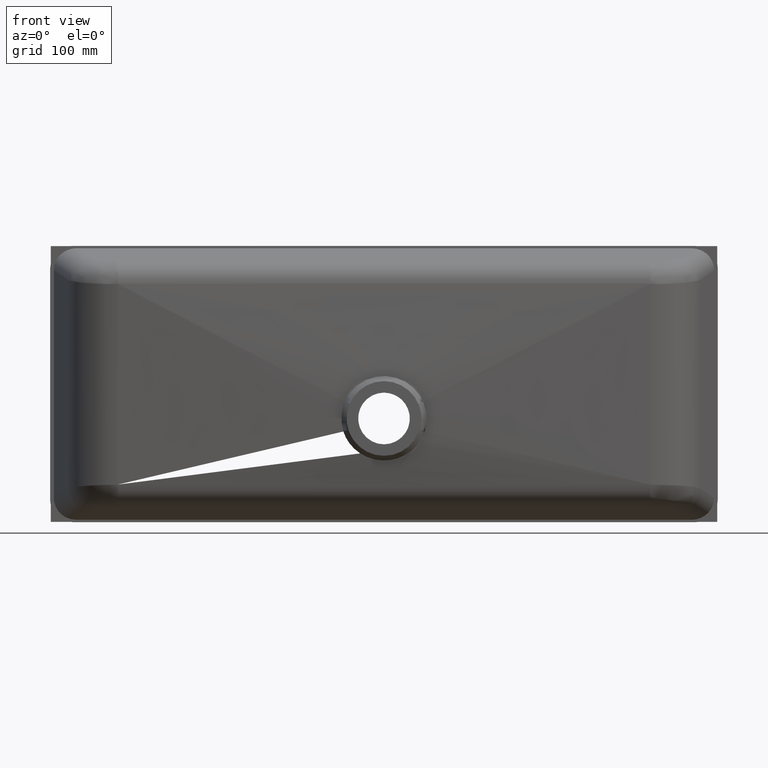
[diagram: clean part render]
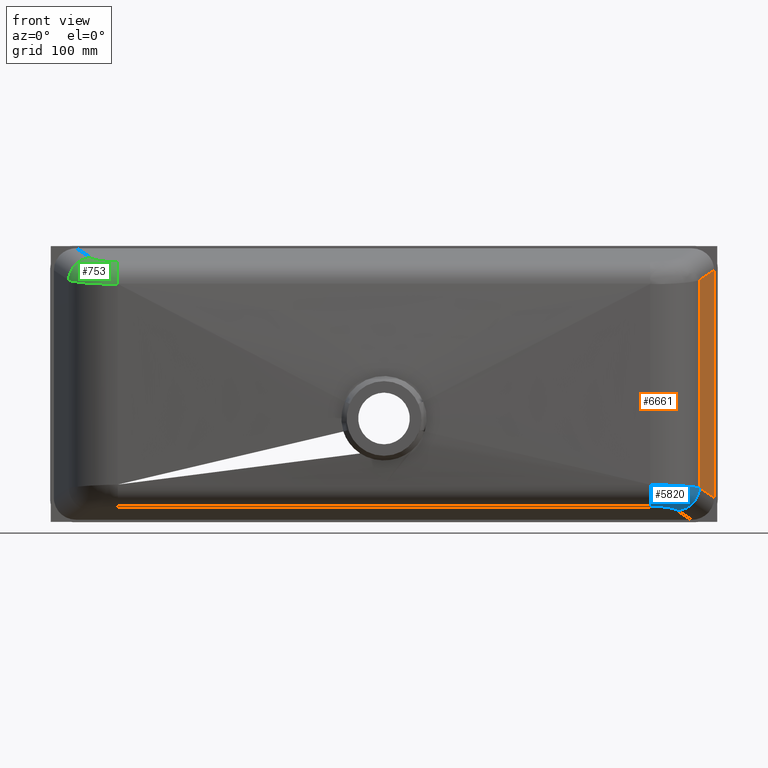
[diagram: same view with three faces highlighted in distinct colors, each labeled with its STEP entity id]
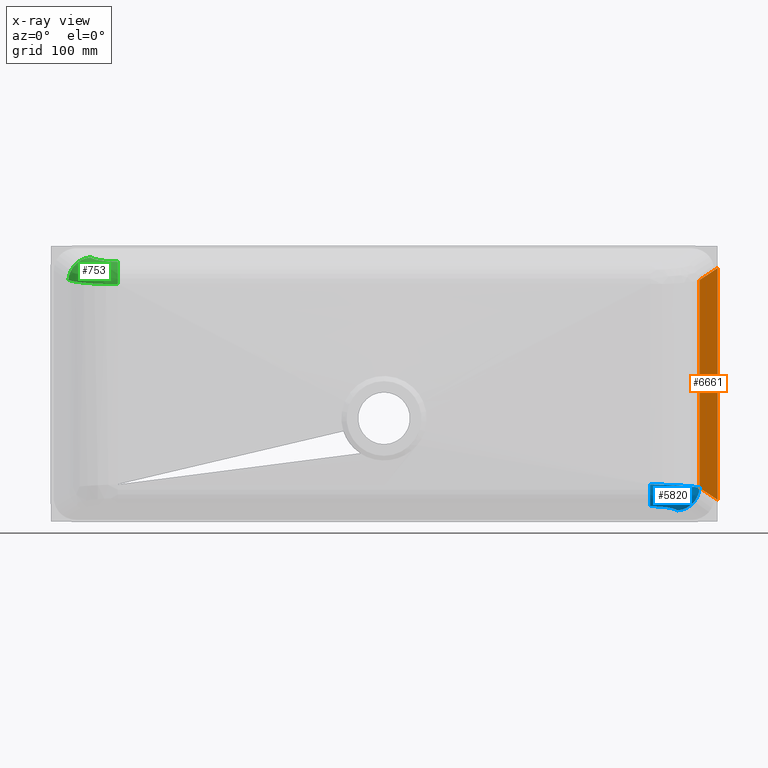
[diagram: x-ray of the same camera — body ghosted, the three highlighted faces saturated]
A machine part, front view with three faces highlighted in distinct colors.
The next image is the same camera in x-ray (body ghosted, the three faces saturated) — at least one of them is partly hidden behind the body in this view.
Their STEP definitions:

[orange] entity #6661 — the highlighted planar face has unit normal (0.9556, -0.2945, 0).
#226 = AXIS2_PLACEMENT_3D ( 'NONE', #4502, #4828, #1514 ) ;
#279 = VERTEX_POINT ( 'NONE', #6940 ) ;
#547 = LINE ( 'NONE', #4773, #5669 ) ;
#575 = LINE ( 'NONE', #4490, #5588 ) ;
#967 = CARTESIAN_POINT ( 'NONE',  ( 274.6665820904081000, -51.25455947590499800, 90.46977674445636800 ) ) ;
#1226 = ORIENTED_EDGE ( 'NONE', *, *, #6450, .T. ) ;
#1272 = VECTOR ( 'NONE', #5541, 1000.000000000000000 ) ;
#1426 = PLANE ( 'NONE',  #226 ) ;
#1435 = VECTOR ( 'NONE', #2630, 999.9999999999998900 ) ;
#1514 = DIRECTION ( 'NONE',  ( 0.0000000000000000000, 0.0000000000000000000, 1.000000000000000000 ) ) ;
#1575 = CARTESIAN_POINT ( 'NONE',  ( 274.6665820904081600, -51.25455947590502600, -90.46977674445646800 ) ) ;
#2421 = EDGE_CURVE ( 'NONE', #4818, #6031, #547, .T. ) ;
#2475 = LINE ( 'NONE', #6665, #1435 ) ;
#2630 = DIRECTION ( 'NONE',  ( -0.2890262232899768500, -0.9377295244519263700, -0.1926841488599843300 ) ) ;
#2754 = ORIENTED_EDGE ( 'NONE', *, *, #6822, .F. ) ;
#3111 = EDGE_CURVE ( 'NONE', #279, #4818, #2475, .T. ) ;
#3824 = CARTESIAN_POINT ( 'NONE',  ( 290.4642202850363900, 0.0000000000000000000, -110.0000000000000300 ) ) ;
#3908 = DIRECTION ( 'NONE',  ( 0.2890262232899767400, 0.9377295244519260300, -0.1926841488599853600 ) ) ;
#4293 = LINE ( 'NONE', #3824, #1272 ) ;
#4490 = CARTESIAN_POINT ( 'NONE',  ( 243.3109626200316900, -152.9861248686818600, -69.56603043087213200 ) ) ;
#4502 = CARTESIAN_POINT ( 'NONE',  ( 289.5563737455908600, -2.945457661312228700, -110.0000000000000300 ) ) ;
#4646 = FACE_OUTER_BOUND ( 'NONE', #7059, .T. ) ;
#4773 = CARTESIAN_POINT ( 'NONE',  ( 274.6665820904081600, -51.25455947590501900, -110.0000000000000300 ) ) ;
#4818 = VERTEX_POINT ( 'NONE', #967 ) ;
#4828 = DIRECTION ( 'NONE',  ( 0.9556373745590798200, -0.2945457661312228500, 0.0000000000000000000 ) ) ;
#5233 = ORIENTED_EDGE ( 'NONE', *, *, #2421, .T. ) ;
#5541 = DIRECTION ( 'NONE',  ( 0.0000000000000000000, 0.0000000000000000000, -1.000000000000000000 ) ) ;
#5588 = VECTOR ( 'NONE', #3908, 1000.000000000000200 ) ;
#5669 = VECTOR ( 'NONE', #6953, 1000.000000000000000 ) ;
#6031 = VERTEX_POINT ( 'NONE', #1575 ) ;
#6450 = EDGE_CURVE ( 'NONE', #6031, #6687, #575, .T. ) ;
#6501 = CARTESIAN_POINT ( 'NONE',  ( 290.4642202850362800, 0.0000000000000000000, -101.0015355408753500 ) ) ;
#6661 = ADVANCED_FACE ( 'NONE', ( #4646 ), #1426, .T. ) ;
#6665 = CARTESIAN_POINT ( 'NONE',  ( 277.8392411563957000, -40.96104339514542400, 92.58488278844811200 ) ) ;
#6687 = VERTEX_POINT ( 'NONE', #6501 ) ;
#6822 = EDGE_CURVE ( 'NONE', #279, #6687, #4293, .T. ) ;
#6871 = ORIENTED_EDGE ( 'NONE', *, *, #3111, .T. ) ;
#6940 = CARTESIAN_POINT ( 'NONE',  ( 290.4642202850363900, 0.0000000000000000000, 101.0015355408752200 ) ) ;
#6953 = DIRECTION ( 'NONE',  ( -0.0000000000000000000, -0.0000000000000000000, -1.000000000000000000 ) ) ;
#7059 = EDGE_LOOP ( 'NONE', ( #6871, #5233, #1226, #2754 ) ) ;

[blue] entity #5820 — the highlighted face is a freeform B-spline surface patch.
#65 = CARTESIAN_POINT ( 'NONE',  ( 243.4658422573858200, -81.48996597547807100, -87.01824632212989700 ) ) ;
#111 = CARTESIAN_POINT ( 'NONE',  ( 246.8486582139164500, -80.43563471032862800, -103.6810563657607800 ) ) ;
#112 = CARTESIAN_POINT ( 'NONE',  ( 267.0275888558098800, -65.92814714908078600, -89.29070128795170500 ) ) ;
#119 = CARTESIAN_POINT ( 'NONE',  ( 270.9716931943263500, -60.03418655241968300, -89.46753621061438400 ) ) ;
#242 = CARTESIAN_POINT ( 'NONE',  ( 231.8385299519722200, -82.99367597550990200, -87.58014424797727300 ) ) ;
#295 = CARTESIAN_POINT ( 'NONE',  ( 260.3073087562598300, -72.78770531966573300, -88.01165507279553400 ) ) ;
#296 = CARTESIAN_POINT ( 'NONE',  ( 254.8829951864241000, -76.65679027390456200, -104.4575312499563900 ) ) ;
#297 = CARTESIAN_POINT ( 'NONE',  ( 270.9893419520601600, -60.00167211826679600, -89.76186391658728800 ) ) ;
#375 = CARTESIAN_POINT ( 'NONE',  ( 260.3630039743184700, -72.81224727469079000, -105.2475058388514400 ) ) ;
#390 = CARTESIAN_POINT ( 'NONE',  ( 240.7369005567944400, -65.35824482089104500, -106.7791501786589200 ) ) ;
#398 = CARTESIAN_POINT ( 'NONE',  ( 271.7259362658638800, -58.90316125513796000, -108.1055372127171200 ) ) ;
#438 = ORIENTED_EDGE ( 'NONE', *, *, #788, .F. ) ;
#439 = CARTESIAN_POINT ( 'NONE',  ( 247.9961008140198000, -79.99896593703005000, -87.18845180597273300 ) ) ;
#607 = CARTESIAN_POINT ( 'NONE',  ( 244.3162423986019900, -63.62752405757432700, -107.1347777327651000 ) ) ;
#619 = ORIENTED_EDGE ( 'NONE', *, *, #7085, .T. ) ;
#649 = CARTESIAN_POINT ( 'NONE',  ( 256.4702423606729600, -75.62023867014431700, -87.68830651680232800 ) ) ;
#690 = CARTESIAN_POINT ( 'NONE',  ( 231.7202493237673200, -82.98277113016739300, -87.67518544023180000 ) ) ;
#788 = EDGE_CURVE ( 'NONE', #6773, #4418, #4235, .T. ) ;
#878 = CARTESIAN_POINT ( 'NONE',  ( 254.4389161292985800, -76.88366856303946400, -87.54407936007722000 ) ) ;
#992 = CARTESIAN_POINT ( 'NONE',  ( 269.7470305392294000, -62.08911787334321300, -89.23295500959591200 ) ) ;
#1010 = CARTESIAN_POINT ( 'NONE',  ( 244.1776133466349800, -81.22904558729069900, -87.87044580254979600 ) ) ;
#1090 = CARTESIAN_POINT ( 'NONE',  ( 231.8385299519722200, -82.99367597550990200, -87.58014424797727300 ) ) ;
#1099 = CARTESIAN_POINT ( 'NONE',  ( 231.6914940914996100, -82.98280801128312600, -87.67495424430748600 ) ) ;
#1202 = CARTESIAN_POINT ( 'NONE',  ( 240.4482075865233500, -82.19471169282840600, -103.3196021912750100 ) ) ;
#1211 = CARTESIAN_POINT ( 'NONE',  ( 273.0802851176772500, -55.75631747934375700, -89.95587742898881300 ) ) ;
#1258 = CARTESIAN_POINT ( 'NONE',  ( 258.4608885901445800, -74.15062838797655300, -88.61702293655700700 ) ) ;
#1328 = CARTESIAN_POINT ( 'NONE',  ( 234.0475671750761300, -83.00000000000000000, -86.84586800881999100 ) ) ;
#1400 = CARTESIAN_POINT ( 'NONE',  ( 252.9399413242724400, -77.75191368295834600, -104.2325058919343000 ) ) ;
#1447 = CARTESIAN_POINT ( 'NONE',  ( 262.1130081231219700, -71.21863197880446700, -88.19077303407705400 ) ) ;
#1488 = CARTESIAN_POINT ( 'NONE',  ( 258.4704360225898100, -74.14354867898424600, -88.61762994167476400 ) ) ;
#1498 = CARTESIAN_POINT ( 'NONE',  ( 247.5764605246969300, -61.35198892236918800, -107.6023534454784900 ) ) ;
#1551 = CARTESIAN_POINT ( 'NONE',  ( 272.7424606643077700, -56.84700641282205400, -108.5280347830152300 ) ) ;
#1575 = CARTESIAN_POINT ( 'NONE',  ( 274.6665820904081600, -51.25455947590502600, -90.46977674445646800 ) ) ;
#1663 = CARTESIAN_POINT ( 'NONE',  ( 265.4532748523742500, -67.81437848020139800, -88.57938644716513500 ) ) ;
#1842 = CARTESIAN_POINT ( 'NONE',  ( 253.5011185458245700, -54.26670071832420200, -109.0582345832959600 ) ) ;
#1909 = CARTESIAN_POINT ( 'NONE',  ( 236.0785846550601300, -82.83823062228140100, -103.1873722742631400 ) ) ;
#1990 = CARTESIAN_POINT ( 'NONE',  ( 236.9287078183872900, -66.50050155569262200, -106.5444398906860100 ) ) ;
#2038 = CARTESIAN_POINT ( 'NONE',  ( 241.8633751209646100, -81.83252435006457400, -87.77317924440572500 ) ) ;
#2058 = CARTESIAN_POINT ( 'NONE',  ( 268.1010785598294300, -64.68011462956236800, -106.9184919987934100 ) ) ;
#2069 = CARTESIAN_POINT ( 'NONE',  ( 255.1636156802029500, -50.65517372438542800, -109.8003291710916000 ) ) ;
#2115 = CARTESIAN_POINT ( 'NONE',  ( 248.5796268396169600, -60.48028151077210200, -107.7814714067655800 ) ) ;
#2122 = EDGE_CURVE ( 'NONE', #4335, #6773, #4444, .T. ) ;
#2231 = CARTESIAN_POINT ( 'NONE',  ( 273.5969076623466700, -54.72505873139338900, -108.9640514299255600 ) ) ;
#2312 = CIRCLE ( 'NONE', #3285, 19.99999999999998600 ) ;
#2330 = CARTESIAN_POINT ( 'NONE',  ( 252.2014236996337200, -60.26584103894986600, -107.8255345174139700 ) ) ;
#2380 = CARTESIAN_POINT ( 'NONE',  ( 231.8385299519722200, -82.99367597550990200, -87.58014424797727300 ) ) ;
#2625 = VERTEX_POINT ( 'NONE', #3886 ) ;
#2652 = CARTESIAN_POINT ( 'NONE',  ( 243.5976741424185300, -81.39261065634602200, -87.84555291538461600 ) ) ;
#2781 = EDGE_CURVE ( 'NONE', #6031, #2625, #2312, .T. ) ;
#2837 = CARTESIAN_POINT ( 'NONE',  ( 254.0157329683775300, -77.07813909663354900, -88.35196265539924800 ) ) ;
#2888 = CARTESIAN_POINT ( 'NONE',  ( 231.6629002352494800, -67.02548596699030300, -106.4365663815152500 ) ) ;
#2966 = CARTESIAN_POINT ( 'NONE',  ( 255.7085191938350900, -76.04268300884248800, -88.44916778294054900 ) ) ;
#3026 = CARTESIAN_POINT ( 'NONE',  ( 231.6629002352495100, -83.00000000000000000, -86.84586800882918600 ) ) ;
#3051 = CARTESIAN_POINT ( 'NONE',  ( 273.0871369692712800, -55.73908692997340400, -90.10345371143235100 ) ) ;
#3058 = ORIENTED_EDGE ( 'NONE', *, *, #2781, .F. ) ;
#3195 = CARTESIAN_POINT ( 'NONE',  ( 250.4353305781027900, -58.58902956710063100, -108.1700848198487500 ) ) ;
#3203 = CARTESIAN_POINT ( 'NONE',  ( 231.6629002352497100, -82.98280632273704800, -87.67499493999399400 ) ) ;
#3208 = CARTESIAN_POINT ( 'NONE',  ( 231.6629002352494800, -67.02548596699030300, -106.4365663815152500 ) ) ;
#3234 = CARTESIAN_POINT ( 'NONE',  ( 273.9641883801280100, -53.53343684703612100, -90.20963092582634600 ) ) ;
#3249 = CARTESIAN_POINT ( 'NONE',  ( 243.0445301382212300, -67.02548596699028800, -106.4365663815152300 ) ) ;
#3285 = AXIS2_PLACEMENT_3D ( 'NONE', #4185, #5787, #4475 ) ;
#3297 = ORIENTED_EDGE ( 'NONE', *, *, #2122, .F. ) ;
#3299 = CARTESIAN_POINT ( 'NONE',  ( 257.1029163352187100, -75.12031767691698300, -88.53248246266559800 ) ) ;
#3341 = EDGE_CURVE ( 'NONE', #4418, #6031, #3928, .T. ) ;
#3399 = CARTESIAN_POINT ( 'NONE',  ( 241.1413538849007200, -82.05502805966305900, -86.95374151799461500 ) ) ;
#3437 = CARTESIAN_POINT ( 'NONE',  ( 242.4405727952739400, -81.69438478772052300, -87.79692234444131300 ) ) ;
#3509 = CARTESIAN_POINT ( 'NONE',  ( 269.4044381130466900, -62.81812576208466200, -107.3010924510170400 ) ) ;
#3628 = CARTESIAN_POINT ( 'NONE',  ( 234.3125031555152000, -66.91995768130348700, -106.4582502758344600 ) ) ;
#3704 = DIRECTION ( 'NONE',  ( -1.000000000000000000, -0.0000000000000000000, -0.0000000000000000000 ) ) ;
#3713 = CARTESIAN_POINT ( 'NONE',  ( 231.6629002352497100, -82.98280632273704800, -87.67499493999399400 ) ) ;
#3730 = CARTESIAN_POINT ( 'NONE',  ( 274.6665820904081600, -51.25455947590502600, -90.46977674445646800 ) ) ;
#3783 = CARTESIAN_POINT ( 'NONE',  ( 263.6868645314565400, -69.80581019258377800, -105.8652668830912100 ) ) ;
#3886 = CARTESIAN_POINT ( 'NONE',  ( 255.5538345992266000, -49.38913012027089200, -110.0604751171425200 ) ) ;
#3928 = B_SPLINE_CURVE_WITH_KNOTS ( 'NONE', 3,
 ( #2380, #6939, #4460, #5032, #5756, #2038, #3437, #2652, #1010, #6074, #6300, #4829, #2837, #2966, #6521, #3299, #7146, #5229, #7057, #6030, #4933, #5128, #1258, #1488, #5531, #5176, #6958, #112, #6681, #297, #3051, #5893, #3730 ),
 .UNSPECIFIED., .F., .F.,
 ( 4, 2, 2, 2, 2, 2, 2, 2, 1, 1, 1, 1, 1, 2, 2, 2, 2, 2, 4 ),
 ( 0.0000000000000000000, 0.1249999999995737000, 0.1874999999993612600, 0.2187499999992549800, 0.2499999999991486800, 0.3749999999987198000, 0.4374999999985052000, 0.4687499999983988400, 0.4843749999983456600, 0.4921874999983189000, 0.4960937499983043000, 0.4980468749982970300, 0.4990234374982934200, 0.4995117187482926400, 0.4999999999982918700, 0.6249999999987189100, 0.7499999999991459100, 0.8749999999995730100, 1.000000000000000000 ),
 .UNSPECIFIED. ) ;
#4126 = CARTESIAN_POINT ( 'NONE',  ( 238.2200902475415800, -66.18657817559407900, -106.6089446948158500 ) ) ;
#4185 = CARTESIAN_POINT ( 'NONE',  ( 255.5538345992264300, -45.36364415328056100, -90.46977674445646800 ) ) ;
#4186 = CARTESIAN_POINT ( 'NONE',  ( 248.9237858081553400, -79.64011444213254300, -103.8445194345666800 ) ) ;
#4235 = B_SPLINE_CURVE_WITH_KNOTS ( 'NONE', 3,
 ( #3713, #1099, #690, #5091, #6292, #1090 ),
 .UNSPECIFIED., .F., .F.,
 ( 4, 2, 4 ),
 ( 0.01641184051297991900, 0.01649784700342059300, 0.01658385349386127000 ),
 .UNSPECIFIED. ) ;
#4245 = ORIENTED_EDGE ( 'NONE', *, *, #3341, .F. ) ;
#4314 =( BOUNDED_CURVE ( )  B_SPLINE_CURVE ( 3, ( #2888, #3249, #2330, #5346 ),
 .UNSPECIFIED., .F., .F. ) 
 B_SPLINE_CURVE_WITH_KNOTS ( ( 4, 4 ),
 ( 0.0000000000000000000, 1.271816163292064200 ),
 .UNSPECIFIED. ) 
 CURVE ( )  GEOMETRIC_REPRESENTATION_ITEM ( )  RATIONAL_B_SPLINE_CURVE ( ( 1.000000000000000000, 0.8696884739985920600, 0.8696884739985920600, 1.000000000000000000 ) ) 
 REPRESENTATION_ITEM ( '' )  );
#4330 = CARTESIAN_POINT ( 'NONE',  ( 255.5538345992265500, -49.38913012027083500, -110.0604751171425400 ) ) ;
#4335 = VERTEX_POINT ( 'NONE', #3208 ) ;
#4367 = AXIS2_PLACEMENT_3D ( 'NONE', #7083, #3704, #6763 ) ;
#4418 = VERTEX_POINT ( 'NONE', #242 ) ;
#4444 = CIRCLE ( 'NONE', #4367, 20.00000000000000400 ) ;
#4460 = CARTESIAN_POINT ( 'NONE',  ( 235.7898846102847600, -82.86379577335395700, -87.58579695774547200 ) ) ;
#4475 = DIRECTION ( 'NONE',  ( 0.9556373745590797100, -0.2945457661312231300, 0.0000000000000000000 ) ) ;
#4577 = CARTESIAN_POINT ( 'NONE',  ( 258.5938876565597300, -74.18845531730907800, -104.9647233643275700 ) ) ;
#4713 = CARTESIAN_POINT ( 'NONE',  ( 242.6121642498706900, -81.71207159709990700, -103.4187748136844800 ) ) ;
#4829 = CARTESIAN_POINT ( 'NONE',  ( 252.8723057720407900, -77.70914805232949600, -88.28946964381228200 ) ) ;
#4933 = CARTESIAN_POINT ( 'NONE',  ( 258.4182325444291500, -74.18221913793836100, -88.61431288570653900 ) ) ;
#5032 = CARTESIAN_POINT ( 'NONE',  ( 239.0412558549322700, -82.40448075538932900, -87.67247845490867100 ) ) ;
#5091 = CARTESIAN_POINT ( 'NONE',  ( 231.7775795655373100, -82.98262020815390400, -87.67619248956252400 ) ) ;
#5110 = CARTESIAN_POINT ( 'NONE',  ( 252.8207504041158400, -55.40832922996192200, -108.8236533822745100 ) ) ;
#5128 = CARTESIAN_POINT ( 'NONE',  ( 258.4438277873601900, -74.16326910227090300, -88.61593874699755700 ) ) ;
#5176 = CARTESIAN_POINT ( 'NONE',  ( 262.1807989094323800, -71.15570049368126600, -88.86900513567439900 ) ) ;
#5228 = CARTESIAN_POINT ( 'NONE',  ( 236.4321854917245100, -82.81004908576485900, -86.86755190315371100 ) ) ;
#5229 = CARTESIAN_POINT ( 'NONE',  ( 257.9991989113630100, -74.48903365449696400, -88.58786079807484300 ) ) ;
#5255 = CARTESIAN_POINT ( 'NONE',  ( 254.6725585032880600, -51.89010678885829700, -109.5465758016793500 ) ) ;
#5346 = CARTESIAN_POINT ( 'NONE',  ( 255.5538345992266000, -49.38913012027089200, -110.0604751171425200 ) ) ;
#5531 = CARTESIAN_POINT ( 'NONE',  ( 260.3855101386825500, -72.72253310681833200, -88.73943230188376700 ) ) ;
#5660 = CARTESIAN_POINT ( 'NONE',  ( 245.4447569715986500, -62.92561856150590000, -107.2790048894914700 ) ) ;
#5756 = CARTESIAN_POINT ( 'NONE',  ( 240.1549271510126900, -82.20684329415946900, -87.70848883942835500 ) ) ;
#5769 = CARTESIAN_POINT ( 'NONE',  ( 241.9623016771893200, -64.84384365345575000, -106.8848490486798800 ) ) ;
#5787 = DIRECTION ( 'NONE',  ( 0.2890262232899768500, 0.9377295244519262600, -0.1926841488599854200 ) ) ;
#5800 = CARTESIAN_POINT ( 'NONE',  ( 233.8699806268323600, -83.00000000001838900, -103.1541319911064200 ) ) ;
#5820 = ADVANCED_FACE ( 'NONE', ( #6684 ), #6760, .T. ) ;
#5893 = CARTESIAN_POINT ( 'NONE',  ( 273.9669144418575700, -53.52459229120260900, -90.28249302158123200 ) ) ;
#6030 = CARTESIAN_POINT ( 'NONE',  ( 258.3584821139110100, -74.22635864390294100, -88.61052217069763500 ) ) ;
#6031 = VERTEX_POINT ( 'NONE', #1575 ) ;
#6074 = CARTESIAN_POINT ( 'NONE',  ( 247.0811710258557800, -80.34585873731919000, -87.99779824684300400 ) ) ;
#6109 = CARTESIAN_POINT ( 'NONE',  ( 274.6665820904081000, -51.25455947590496900, -90.46977674445648200 ) ) ;
#6157 = CARTESIAN_POINT ( 'NONE',  ( 265.2419961994635300, -68.17224388985179900, -106.2009311918876900 ) ) ;
#6253 = CARTESIAN_POINT ( 'NONE',  ( 231.6629002352495100, -67.02548596699030300, -106.4365663815152500 ) ) ;
#6292 = CARTESIAN_POINT ( 'NONE',  ( 231.8062377333094400, -82.98250617400837800, -87.67696821160591000 ) ) ;
#6300 = CARTESIAN_POINT ( 'NONE',  ( 249.4171495191240000, -79.42955371989448600, -88.10892182937325900 ) ) ;
#6452 = CARTESIAN_POINT ( 'NONE',  ( 250.2018228307265700, -79.07304383564958500, -87.29415067599563800 ) ) ;
#6521 = CARTESIAN_POINT ( 'NONE',  ( 256.2690464085831600, -75.68271732378451600, -88.48214709381449000 ) ) ;
#6638 = CARTESIAN_POINT ( 'NONE',  ( 266.9878066996374700, -65.97923451791679400, -88.78887776705104800 ) ) ;
#6681 = CARTESIAN_POINT ( 'NONE',  ( 269.7713463675647200, -62.04971803972615900, -89.59931343189119000 ) ) ;
#6684 = FACE_OUTER_BOUND ( 'NONE', #7075, .T. ) ;
#6760 =( BOUNDED_SURFACE ( )  B_SPLINE_SURFACE ( 3, 2, ( 
 ( #6109, #2231, #4330 ),
 ( #3234, #1551, #2069 ),
 ( #1211, #398, #5255 ),
 ( #119, #3509, #1842 ),
 ( #992, #2058, #5110 ),
 ( #6638, #6157, #6995 ),
 ( #1663, #3783, #3195 ),
 ( #1447, #375, #2115 ),
 ( #295, #4577, #1498 ),
 ( #649, #296, #5660 ),
 ( #878, #1400, #607 ),
 ( #6452, #4186, #5769 ),
 ( #439, #111, #390 ),
 ( #65, #4713, #4126 ),
 ( #3399, #1202, #1990 ),
 ( #5228, #1909, #3628 ),
 ( #1328, #5800, #6918 ),
 ( #3026, #6957, #6253 ) ),
 .UNSPECIFIED., .F., .F., .F. ) 
 B_SPLINE_SURFACE_WITH_KNOTS ( ( 4, 2, 2, 2, 2, 2, 2, 2, 4 ),
 ( 3, 3 ),
 ( 5.011369143887520700, 5.170346164299028900, 5.329323184710537100, 5.488300205122045300, 5.647277225533553500, 5.806254245945061700, 5.965231266356569900, 6.124208286768078000, 6.283185307179586200 ),
 ( 0.0000000000000000000, 1.000000000000000000 ),
 .UNSPECIFIED. ) 
 GEOMETRIC_REPRESENTATION_ITEM ( )  RATIONAL_B_SPLINE_SURFACE ( (
 ( 1.000000000000000000, 0.7277652411354508200, 1.000000000000000000),
 ( 1.000000000000000000, 0.7312667892700519500, 1.000000000000000000),
 ( 1.000000000000000000, 0.7346566535506733300, 1.000000000000000000),
 ( 1.000000000000000000, 0.7411392204702016400, 1.000000000000000000),
 ( 1.000000000000000000, 0.7442317661704008800, 1.000000000000000000),
 ( 1.000000000000000000, 0.7500538014635930200, 1.000000000000000000),
 ( 1.000000000000000000, 0.7527832771203927200, 1.000000000000000000),
 ( 1.000000000000000000, 0.7578231129170941400, 1.000000000000000000),
 ( 1.000000000000000000, 0.7601334641550890900, 1.000000000000000000),
 ( 1.000000000000000000, 0.7642888899878389500, 1.000000000000000000),
 ( 1.000000000000000000, 0.7661339591198753600, 1.000000000000000000),
 ( 1.000000000000000000, 0.7693227676221504600, 1.000000000000000000),
 ( 1.000000000000000000, 0.7706665038043762900, 1.000000000000000000),
 ( 1.000000000000000000, 0.7728268269038840500, 1.000000000000000000),
 ( 1.000000000000000000, 0.7736434121059567700, 1.000000000000000000),
 ( 1.000000000000000000, 0.7747339180922052600, 1.000000000000000000),
 ( 1.000000000000000000, 0.7750080000350871900, 1.000000000000000000),
 ( 1.000000000000000000, 0.7750078381376267500, 1.000000000000000000) ) ) 
 REPRESENTATION_ITEM ( '' )  SURFACE ( )  );
#6763 = DIRECTION ( 'NONE',  ( 0.0000000000000000000, 0.0000000000000000000, -1.000000000000000000 ) ) ;
#6773 = VERTEX_POINT ( 'NONE', #3203 ) ;
#6918 = CARTESIAN_POINT ( 'NONE',  ( 232.9877152018183300, -67.02548596699936900, -106.4365663815133900 ) ) ;
#6939 = CARTESIAN_POINT ( 'NONE',  ( 233.7428164678013300, -82.99218596959872200, -87.55647550149771500 ) ) ;
#6957 = CARTESIAN_POINT ( 'NONE',  ( 231.6629002352495100, -83.00000000000000000, -103.1541319911708000 ) ) ;
#6958 = CARTESIAN_POINT ( 'NONE',  ( 265.5018556518693300, -67.75848973026683100, -89.14463962870833300 ) ) ;
#6995 = CARTESIAN_POINT ( 'NONE',  ( 251.2878482710319500, -57.56950514360754300, -108.3795761397445900 ) ) ;
#7057 = CARTESIAN_POINT ( 'NONE',  ( 258.2388690584746200, -74.31432873291836900, -88.60295258602710100 ) ) ;
#7075 = EDGE_LOOP ( 'NONE', ( #619, #3058, #4245, #438, #3297 ) ) ;
#7083 = CARTESIAN_POINT ( 'NONE',  ( 231.6629002352494800, -63.00000000000000000, -86.84586800882918600 ) ) ;
#7085 = EDGE_CURVE ( 'NONE', #4335, #2625, #4314, .T. ) ;
#7146 = CARTESIAN_POINT ( 'NONE',  ( 257.5181202764562700, -74.83350615753252600, -88.55786674772615200 ) ) ;

[green] entity #753 — the highlighted face is a freeform B-spline surface patch.
#3 = CARTESIAN_POINT ( 'NONE',  ( -254.6725585032506600, -51.89010678885463100, 109.5465758016801300 ) ) ;
#41 = CIRCLE ( 'NONE', #3598, 19.99999999999999300 ) ;
#93 = DIRECTION ( 'NONE',  ( 0.9556373745590792700, 0.2945457661312247400, -2.081668171172169300E-015 ) ) ;
#99 = CARTESIAN_POINT ( 'NONE',  ( -269.7470305392292900, -62.08911787334326200, 89.23295500958661800 ) ) ;
#160 = CARTESIAN_POINT ( 'NONE',  ( -248.9237858081553400, -79.64011444214180800, 103.8445194345667100 ) ) ;
#200 = CARTESIAN_POINT ( 'NONE',  ( -231.9315133560972400, -82.99537697220449700, 87.23859902624269600 ) ) ;
#372 = CARTESIAN_POINT ( 'NONE',  ( -233.8699810878866900, -82.99999999997245900, 103.1541319912075900 ) ) ;
#374 = EDGE_CURVE ( 'NONE', #2437, #6272, #41, .T. ) ;
#384 = CARTESIAN_POINT ( 'NONE',  ( -258.5938876565600100, -74.18845531730882200, 104.9647233643369600 ) ) ;
#435 = CARTESIAN_POINT ( 'NONE',  ( -265.4532748523649300, -67.81437848021092000, 88.57938644715586900 ) ) ;
#520 = ORIENTED_EDGE ( 'NONE', *, *, #6901, .F. ) ;
#654 = CARTESIAN_POINT ( 'NONE',  ( -231.9847537155930300, -82.99482452376197700, 87.24719575072765600 ) ) ;
#665 = CARTESIAN_POINT ( 'NONE',  ( -243.0445301382211500, -67.02548596699026000, 106.4365663815152600 ) ) ;
#667 = CARTESIAN_POINT ( 'NONE',  ( -231.9847537155930300, -82.99482452376197700, 87.24719575072765600 ) ) ;
#753 = ADVANCED_FACE ( 'NONE', ( #2665 ), #1703, .T. ) ;
#1019 = CARTESIAN_POINT ( 'NONE',  ( -260.3630039743558800, -72.81224727466259600, 105.2475058388330100 ) ) ;
#1106 = CARTESIAN_POINT ( 'NONE',  ( -265.2419961994637600, -68.17224388986078100, 106.2009311918970700 ) ) ;
#1206 = CARTESIAN_POINT ( 'NONE',  ( -255.5538345992264900, -45.36364415328061700, 90.46977674445646800 ) ) ;
#1246 = CARTESIAN_POINT ( 'NONE',  ( -231.8394702937033000, -82.99965358771615300, 86.84590755361045900 ) ) ;
#1376 = CARTESIAN_POINT ( 'NONE',  ( -252.8207504041157800, -55.40832922995930000, 108.8236533822750500 ) ) ;
#1454 = CARTESIAN_POINT ( 'NONE',  ( -231.8394702937033000, -82.99965358771615300, 86.84590755361045900 ) ) ;
#1604 = CARTESIAN_POINT ( 'NONE',  ( -248.5796268396354400, -60.48028151076319900, 107.7814714067674100 ) ) ;
#1696 = CARTESIAN_POINT ( 'NONE',  ( -245.4447569716171800, -62.92561856150134500, 107.2790048894924600 ) ) ;
#1703 =( BOUNDED_SURFACE ( )  B_SPLINE_SURFACE ( 3, 2, ( 
 ( #4258, #2587, #2162 ),
 ( #3958, #5459, #2235 ),
 ( #3237, #4085, #3 ),
 ( #6293, #4520, #2174 ),
 ( #99, #6761, #1376 ),
 ( #4870, #1106, #7052 ),
 ( #435, #5723, #2140 ),
 ( #7122, #1019, #1604 ),
 ( #3966, #384, #3064 ),
 ( #5619, #6703, #1696 ),
 ( #3482, #3846, #3368 ),
 ( #2938, #160, #3200 ),
 ( #4665, #4103, #4737 ),
 ( #2644, #6858, #5765 ),
 ( #1998, #4822, #7128 ),
 ( #2474, #4746, #5447 ),
 ( #6134, #372, #5773 ),
 ( #3220, #2255, #3479 ) ),
 .UNSPECIFIED., .F., .F., .T. ) 
 B_SPLINE_SURFACE_WITH_KNOTS ( ( 4, 2, 2, 2, 2, 2, 2, 2, 4 ),
 ( 3, 3 ),
 ( 5.011369143887522500, 5.170346164299030700, 5.329323184710538900, 5.488300205122046200, 5.647277225533554400, 5.806254245945062600, 5.965231266356569900, 6.124208286768078000, 6.283185307179586200 ),
 ( 0.0000000000000000000, 1.000000000000000000 ),
 .UNSPECIFIED. ) 
 GEOMETRIC_REPRESENTATION_ITEM ( )  RATIONAL_B_SPLINE_SURFACE ( (
 ( 1.000000000000000000, 0.7277652411354509400, 1.000000000000000000),
 ( 1.000000000000000000, 0.7312667892700526200, 1.000000000000000000),
 ( 1.000000000000000000, 0.7346566535506732200, 1.000000000000000000),
 ( 1.000000000000000000, 0.7411392204702015300, 1.000000000000000000),
 ( 1.000000000000000000, 0.7442317661702517700, 1.000000000000000000),
 ( 1.000000000000000000, 0.7500538014637421200, 1.000000000000000000),
 ( 1.000000000000000000, 0.7527832771201697900, 1.000000000000000000),
 ( 1.000000000000000000, 0.7578231129173173000, 1.000000000000000000),
 ( 1.000000000000000000, 0.7601334641550144800, 1.000000000000000000),
 ( 1.000000000000000000, 0.7642888899879126700, 1.000000000000000000),
 ( 1.000000000000000000, 0.7661339591198748100, 1.000000000000000000),
 ( 1.000000000000000000, 0.7693227676221499100, 1.000000000000000000),
 ( 1.000000000000000000, 0.7706665038048919900, 1.000000000000000000),
 ( 1.000000000000000000, 0.7728268269033679000, 1.000000000000000000),
 ( 1.000000000000000000, 0.7736434121061772600, 1.000000000000000000),
 ( 1.000000000000000000, 0.7747339180919843300, 1.000000000000000000),
 ( 1.000000000000000000, 0.7750078381376260800, 1.000000000000000000),
 ( 1.000000000000000000, 0.7750078381376260800, 1.000000000000000000) ) ) 
 REPRESENTATION_ITEM ( '' )  SURFACE ( )  );
#1834 = ORIENTED_EDGE ( 'NONE', *, *, #6284, .F. ) ;
#1966 = CARTESIAN_POINT ( 'NONE',  ( -231.6629002352494800, -67.02548596699028800, 106.4365663815152800 ) ) ;
#1998 = CARTESIAN_POINT ( 'NONE',  ( -241.1413538849006700, -82.05502805966305900, 86.95374151799464400 ) ) ;
#2140 = CARTESIAN_POINT ( 'NONE',  ( -250.4353305780840900, -58.58902956710955600, 108.1700848198469300 ) ) ;
#2162 = CARTESIAN_POINT ( 'NONE',  ( -255.5538345992264300, -49.38913012027084900, 110.0604751171425400 ) ) ;
#2174 = CARTESIAN_POINT ( 'NONE',  ( -253.5011185458618900, -54.26670071832790400, 109.0582345832952000 ) ) ;
#2233 = CARTESIAN_POINT ( 'NONE',  ( -231.6629002352495900, -82.99646976031802100, 87.22163006743414800 ) ) ;
#2235 = CARTESIAN_POINT ( 'NONE',  ( -255.1636156801738800, -50.65517372437130200, 109.8003291710945200 ) ) ;
#2255 = CARTESIAN_POINT ( 'NONE',  ( -231.6629002352493400, -83.00000000000002800, 103.1541319911708100 ) ) ;
#2335 =( BOUNDED_CURVE ( )  B_SPLINE_CURVE ( 3, ( #1454, #6826, #3828, #2373 ),
 .UNSPECIFIED., .F., .T. ) 
 B_SPLINE_CURVE_WITH_KNOTS ( ( 4, 4 ),
 ( 0.003923789145266492000, 1.271816163292063700 ),
 .UNSPECIFIED. ) 
 CURVE ( )  GEOMETRIC_REPRESENTATION_ITEM ( )  RATIONAL_B_SPLINE_CURVE ( ( 1.000000000000000000, 0.8704642316436106400, 0.8704642316436106400, 1.000000000000000000 ) ) 
 REPRESENTATION_ITEM ( '' )  );
#2366 = VERTEX_POINT ( 'NONE', #6930 ) ;
#2373 = CARTESIAN_POINT ( 'NONE',  ( -274.6665820904080400, -51.25455947590506200, 90.46977674445646800 ) ) ;
#2437 = VERTEX_POINT ( 'NONE', #6495 ) ;
#2456 = DIRECTION ( 'NONE',  ( 0.0000000000000000000, 0.0000000000000000000, 1.000000000000000000 ) ) ;
#2474 = CARTESIAN_POINT ( 'NONE',  ( -236.4321854917244500, -82.81004908576485900, 86.86755190315373900 ) ) ;
#2491 = DIRECTION ( 'NONE',  ( 1.000000000000000000, -0.0000000000000000000, -0.0000000000000000000 ) ) ;
#2567 = CIRCLE ( 'NONE', #5902, 20.00000000000000400 ) ;
#2587 = CARTESIAN_POINT ( 'NONE',  ( -273.5969076623465000, -54.72505873139344600, 108.9640514299255900 ) ) ;
#2624 = CARTESIAN_POINT ( 'NONE',  ( -231.6629002352495900, -82.99646976031802100, 87.22163006743414800 ) ) ;
#2642 = EDGE_CURVE ( 'NONE', #2366, #2437, #2335, .T. ) ;
#2644 = CARTESIAN_POINT ( 'NONE',  ( -243.4658422573524500, -81.48996597548902800, 87.01824632212992600 ) ) ;
#2665 = FACE_OUTER_BOUND ( 'NONE', #5112, .T. ) ;
#2903 = B_SPLINE_CURVE_WITH_KNOTS ( 'NONE', 3,
 ( #2233, #4698, #5667, #4134, #200, #654 ),
 .UNSPECIFIED., .F., .F.,
 ( 4, 2, 4 ),
 ( 0.007226635315999922800, 0.007388057787554153800, 0.007549480259108384000 ),
 .UNSPECIFIED. ) ;
#2938 = CARTESIAN_POINT ( 'NONE',  ( -250.2018228307227300, -79.07304383565153200, 87.29415067599566700 ) ) ;
#3016 = CARTESIAN_POINT ( 'NONE',  ( -231.6629002352494800, -63.00000000000000000, 86.84586800882921400 ) ) ;
#3052 = EDGE_CURVE ( 'NONE', #2366, #6093, #6191, .T. ) ;
#3056 = CARTESIAN_POINT ( 'NONE',  ( -255.5538345992263800, -49.38913012027088500, 110.0604751171425300 ) ) ;
#3064 = CARTESIAN_POINT ( 'NONE',  ( -247.5764605246784200, -61.35198892237352200, 107.6023534454776200 ) ) ;
#3200 = CARTESIAN_POINT ( 'NONE',  ( -241.9623016771708100, -64.84384365346458900, 106.8848490486780900 ) ) ;
#3220 = CARTESIAN_POINT ( 'NONE',  ( -231.6629002352493400, -83.00000000000000000, 86.84586800882921400 ) ) ;
#3237 = CARTESIAN_POINT ( 'NONE',  ( -273.0802851176642300, -55.75631747936994000, 89.95587742899817800 ) ) ;
#3368 = CARTESIAN_POINT ( 'NONE',  ( -244.3162423986204000, -63.62752405756545900, 107.1347777327669500 ) ) ;
#3458 = CARTESIAN_POINT ( 'NONE',  ( -231.8957926991382700, -82.99778133888027300, 87.13147171506442100 ) ) ;
#3479 = CARTESIAN_POINT ( 'NONE',  ( -231.6629002352494000, -67.02548596699027400, 106.4365663815152800 ) ) ;
#3482 = CARTESIAN_POINT ( 'NONE',  ( -254.4389161293023000, -76.88366856303753100, 87.54407936007724800 ) ) ;
#3598 = AXIS2_PLACEMENT_3D ( 'NONE', #1206, #3673, #93 ) ;
#3673 = DIRECTION ( 'NONE',  ( -0.2890262232899781800, 0.9377295244519260300, 0.1926841488599843100 ) ) ;
#3828 = CARTESIAN_POINT ( 'NONE',  ( -268.6536548167540000, -70.76316796376029600, 88.24276664310318100 ) ) ;
#3846 = CARTESIAN_POINT ( 'NONE',  ( -252.9399413242724400, -77.75191368294912300, 104.2325058919343200 ) ) ;
#3958 = CARTESIAN_POINT ( 'NONE',  ( -273.9641883801338100, -53.53343684701695100, 90.20963092583267000 ) ) ;
#3966 = CARTESIAN_POINT ( 'NONE',  ( -260.3073087562315200, -72.78770531968656600, 88.01165507279556300 ) ) ;
#4021 = CARTESIAN_POINT ( 'NONE',  ( -231.9847537155930300, -82.99482452376197700, 87.24719575072765600 ) ) ;
#4085 = CARTESIAN_POINT ( 'NONE',  ( -271.7259362658263100, -58.90316125514738800, 108.1055372127359400 ) ) ;
#4103 = CARTESIAN_POINT ( 'NONE',  ( -246.8486582139518400, -80.43563471032905500, 103.6810563657607500 ) ) ;
#4134 = CARTESIAN_POINT ( 'NONE',  ( -231.8780671672730900, -82.99578693406562000, 87.23222292624581100 ) ) ;
#4258 = CARTESIAN_POINT ( 'NONE',  ( -274.6665820904079900, -51.25455947590504700, 90.46977674445648200 ) ) ;
#4270 = CARTESIAN_POINT ( 'NONE',  ( -252.2014236996335500, -60.26584103894985800, 107.8255345174139800 ) ) ;
#4469 = VERTEX_POINT ( 'NONE', #2624 ) ;
#4520 = CARTESIAN_POINT ( 'NONE',  ( -269.4044381130838700, -62.81812576207540400, 107.3010924509984700 ) ) ;
#4665 = CARTESIAN_POINT ( 'NONE',  ( -247.9961008140529100, -79.99896593701913600, 87.18845180597276100 ) ) ;
#4698 = CARTESIAN_POINT ( 'NONE',  ( -231.7169617947674600, -82.99647005830561900, 87.22161420979300300 ) ) ;
#4737 = CARTESIAN_POINT ( 'NONE',  ( -240.7369005568127700, -65.35824482089985600, 106.7791501786571300 ) ) ;
#4746 = CARTESIAN_POINT ( 'NONE',  ( -236.0785846550594700, -82.83823062229069500, 103.1873722742539700 ) ) ;
#4822 = CARTESIAN_POINT ( 'NONE',  ( -240.4482075865227300, -82.19471169281929700, 103.3196021912842800 ) ) ;
#4870 = CARTESIAN_POINT ( 'NONE',  ( -266.9878066996373600, -65.97923451791683600, 88.78887776706037000 ) ) ;
#4940 = CARTESIAN_POINT ( 'NONE',  ( -231.6629002352494800, -67.02548596699028800, 106.4365663815152800 ) ) ;
#4970 = ORIENTED_EDGE ( 'NONE', *, *, #6131, .T. ) ;
#5112 = EDGE_LOOP ( 'NONE', ( #4970, #5645, #6623, #5855, #520, #1834 ) ) ;
#5447 = CARTESIAN_POINT ( 'NONE',  ( -234.3125031555151500, -66.91995768130345800, 106.4582502758344900 ) ) ;
#5459 = CARTESIAN_POINT ( 'NONE',  ( -272.7424606641716300, -56.84700641275728800, 108.5280347830409900 ) ) ;
#5619 = CARTESIAN_POINT ( 'NONE',  ( -256.4702423607014900, -75.62023867012321400, 87.68830651680237100 ) ) ;
#5645 = ORIENTED_EDGE ( 'NONE', *, *, #374, .F. ) ;
#5667 = CARTESIAN_POINT ( 'NONE',  ( -231.7707799788073500, -82.99633349723731600, 87.22373020622052300 ) ) ;
#5723 = CARTESIAN_POINT ( 'NONE',  ( -263.6868645314196400, -69.80581019261133200, 105.8652668831099700 ) ) ;
#5765 = CARTESIAN_POINT ( 'NONE',  ( -238.2200902475230500, -66.18657817558521100, 106.6089446948176800 ) ) ;
#5773 = CARTESIAN_POINT ( 'NONE',  ( -232.9877152018184700, -67.02548596698483200, 106.4365663815164000 ) ) ;
#5855 = ORIENTED_EDGE ( 'NONE', *, *, #3052, .T. ) ;
#5902 = AXIS2_PLACEMENT_3D ( 'NONE', #3016, #2491, #2456 ) ;
#6093 = VERTEX_POINT ( 'NONE', #4021 ) ;
#6100 =( BOUNDED_CURVE ( )  B_SPLINE_CURVE ( 3, ( #4940, #665, #4270, #6786 ),
 .UNSPECIFIED., .F., .F. ) 
 B_SPLINE_CURVE_WITH_KNOTS ( ( 4, 4 ),
 ( 0.0000000000000000000, 1.271816163292061900 ),
 .UNSPECIFIED. ) 
 CURVE ( )  GEOMETRIC_REPRESENTATION_ITEM ( )  RATIONAL_B_SPLINE_CURVE ( ( 1.000000000000000000, 0.8696884739985926100, 0.8696884739985926100, 1.000000000000000000 ) ) 
 REPRESENTATION_ITEM ( '' )  );
#6131 = EDGE_CURVE ( 'NONE', #7086, #6272, #6100, .T. ) ;
#6134 = CARTESIAN_POINT ( 'NONE',  ( -234.0475671750762100, -83.00000000000000000, 86.84586800885678300 ) ) ;
#6191 = B_SPLINE_CURVE_WITH_KNOTS ( 'NONE', 3,
 ( #1246, #6456, #3458, #667 ),
 .UNSPECIFIED., .F., .F.,
 ( 4, 4 ),
 ( 5.551115123125782100E-017, 0.0004316552476183454000 ),
 .UNSPECIFIED. ) ;
#6272 = VERTEX_POINT ( 'NONE', #3056 ) ;
#6284 = EDGE_CURVE ( 'NONE', #7086, #4469, #2567, .T. ) ;
#6293 = CARTESIAN_POINT ( 'NONE',  ( -270.9716931943391400, -60.03418655239364200, 89.46753621060503300 ) ) ;
#6456 = CARTESIAN_POINT ( 'NONE',  ( -231.8394663742571400, -82.99965360309536800, 86.99233509691880800 ) ) ;
#6495 = CARTESIAN_POINT ( 'NONE',  ( -274.6665820904080400, -51.25455947590506200, 90.46977674445646800 ) ) ;
#6623 = ORIENTED_EDGE ( 'NONE', *, *, #2642, .F. ) ;
#6703 = CARTESIAN_POINT ( 'NONE',  ( -254.8829951864243500, -76.65679027390432100, 104.4575312499472400 ) ) ;
#6761 = CARTESIAN_POINT ( 'NONE',  ( -268.1010785598296000, -64.68011462955270500, 106.9184919987841300 ) ) ;
#6786 = CARTESIAN_POINT ( 'NONE',  ( -255.5538345992263800, -49.38913012027088500, 110.0604751171425300 ) ) ;
#6826 = CARTESIAN_POINT ( 'NONE',  ( -252.2535508110104300, -82.91955262908997800, 86.85505149865912200 ) ) ;
#6858 = CARTESIAN_POINT ( 'NONE',  ( -242.6121642498323500, -81.71207159710034800, 103.4187748136844200 ) ) ;
#6901 = EDGE_CURVE ( 'NONE', #4469, #6093, #2903, .T. ) ;
#6930 = CARTESIAN_POINT ( 'NONE',  ( -231.8394702937033000, -82.99965358771615300, 86.84590755361045900 ) ) ;
#7052 = CARTESIAN_POINT ( 'NONE',  ( -251.2878482710318900, -57.56950514361018600, 108.3795761397440500 ) ) ;
#7086 = VERTEX_POINT ( 'NONE', #1966 ) ;
#7122 = CARTESIAN_POINT ( 'NONE',  ( -262.1130081231311800, -71.21863197879503100, 88.19077303408636200 ) ) ;
#7128 = CARTESIAN_POINT ( 'NONE',  ( -236.9287078183872400, -66.50050155569259400, 106.5444398906860400 ) ) ;